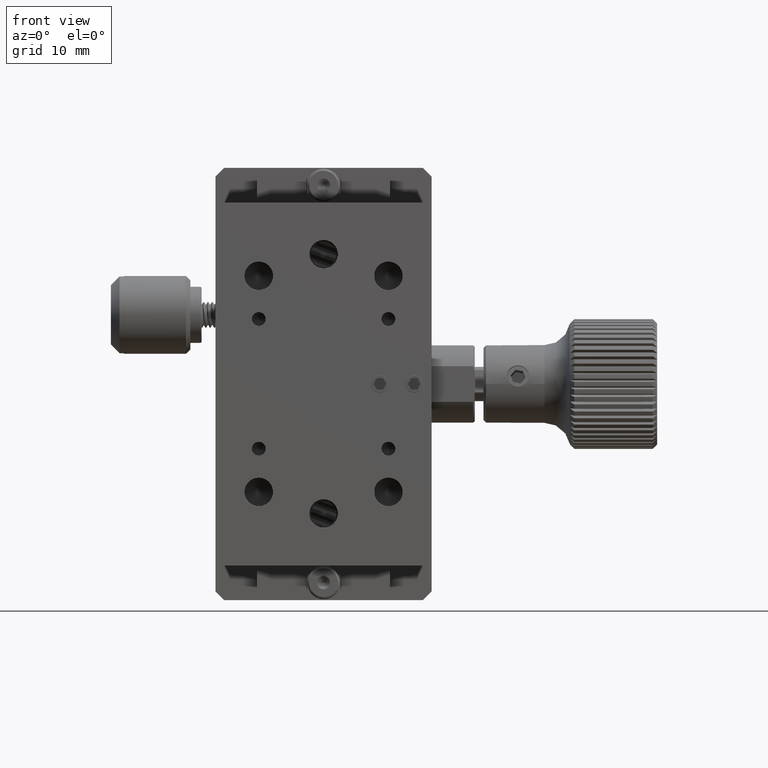
[diagram: clean part render]
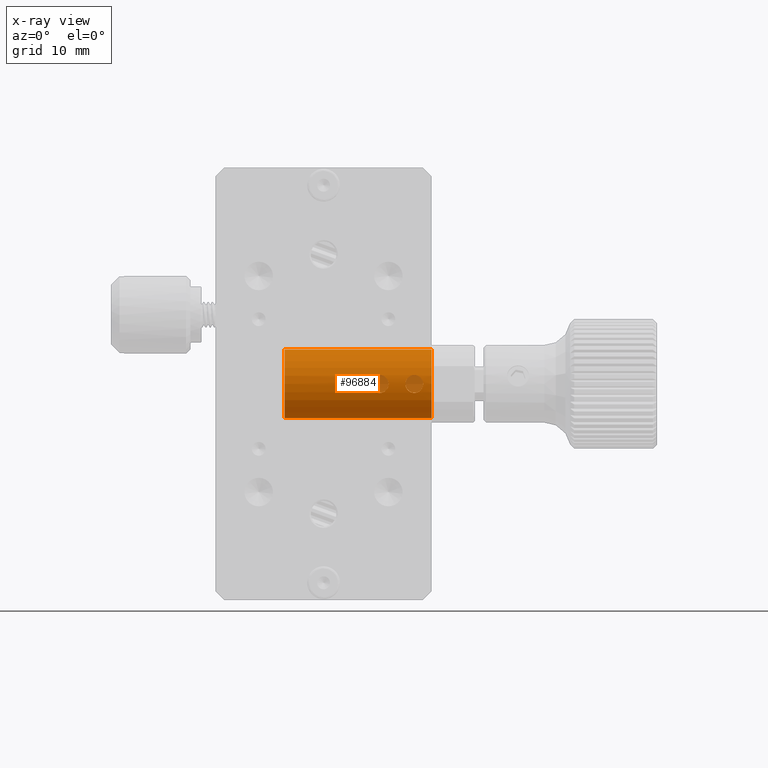
[diagram: x-ray — body ghosted, one internal face saturated and labeled with its STEP entity id]
A machine part, front view, then the same camera in x-ray: the body is ghosted and one INTERNAL B-rep face — a face not visible from any outside direction — is saturated and labeled: STEP entity #96884.
In plain terms, the highlighted cylindrical surface (bore or boss wall) has radius 4 mm, axis along (1, 0, 0).
Its self-contained STEP definition (entity closure, byte-faithful):
#703 = EDGE_CURVE ( 'NONE', #83281, #83281, #57222, .T. ) ;
#1824 = CARTESIAN_POINT ( 'NONE',  ( 9.474991375113672731, 3.899997789871961551, 24.78051272612443157 ) ) ;
#2908 = CARTESIAN_POINT ( 'NONE',  ( 6.230578982523748088, 4.026143432275793188, 25.64263679732385270 ) ) ;
#3536 = CARTESIAN_POINT ( 'NONE',  ( 7.394973579017529275, 3.931641068020847118, 24.12747412222269361 ) ) ;
#3604 = CIRCLE ( 'NONE', #35401, 3.999999999999998224 ) ;
#4142 = CARTESIAN_POINT ( 'NONE',  ( 7.017203248460226916, 4.001067654954175268, 23.74955515404783668 ) ) ;
#4969 = ORIENTED_EDGE ( 'NONE', *, *, #98412, .F. ) ;
#6320 = EDGE_CURVE ( 'NONE', #101837, #14027, #71834, .T. ) ;
#8556 = VERTEX_POINT ( 'NONE', #77623 ) ;
#8683 = CARTESIAN_POINT ( 'NONE',  ( 9.604978835707019158, 3.931633184260484803, 24.12733934432162641 ) ) ;
#11659 = CARTESIAN_POINT ( 'NONE',  ( 7.130828758554955904, 3.983525351014570504, 25.46338294064732111 ) ) ;
#12258 = CARTESIAN_POINT ( 'NONE',  ( 5.474991375113671843, 3.899997789871959331, 24.78051272612441380 ) ) ;
#13308 = CARTESIAN_POINT ( 'NONE',  ( 2.250000000000518252, 7.899999999999209876, 24.64461662145724929 ) ) ;
#14027 = VERTEX_POINT ( 'NONE', #98216 ) ;
#16998 = ORIENTED_EDGE ( 'NONE', *, *, #23537, .T. ) ;
#18231 = CARTESIAN_POINT ( 'NONE',  ( -4.499999999999484857, 7.899999999999208100, 24.64461662145724929 ) ) ;
#18642 = CARTESIAN_POINT ( 'NONE',  ( 11.49802649314374570, 3.907140291372251717, 24.91403021227419146 ) ) ;
#19279 = CARTESIAN_POINT ( 'NONE',  ( 9.681297778272911714, 3.948911959223532442, 25.27552665721466596 ) ) ;
#20995 = CARTESIAN_POINT ( 'NONE',  ( 6.635976539462563828, 4.033557836976465083, 23.61961662145725782 ) ) ;
#22820 = CARTESIAN_POINT ( 'NONE',  ( 7.395007212580094524, 3.931636397413091011, 25.16191987232966909 ) ) ;
#23270 = DIRECTION ( 'NONE',  ( -2.168404344971009854E-16, 1.000000000000000000, 0.000000000000000000 ) ) ;
#23537 = EDGE_CURVE ( 'NONE', #8556, #8556, #49046, .T. ) ;
#25226 = CARTESIAN_POINT ( 'NONE',  ( -2.249999999999482636, 9.099999999999214495, 28.46037342712502749 ) ) ;
#25532 = CARTESIAN_POINT ( 'NONE',  ( 11.39497357901752572, 3.931641068020847118, 24.12747412222271493 ) ) ;
#25723 = DIRECTION ( 'NONE',  ( -2.168404344971009854E-16, 1.000000000000000000, 0.000000000000000000 ) ) ;
#27701 = CARTESIAN_POINT ( 'NONE',  ( -4.499999999999485745, 11.89999999999920632, 24.64461662145724929 ) ) ;
#27978 = CARTESIAN_POINT ( 'NONE',  ( 9.605012454895756946, 3.931637851368814829, 25.16173306833543322 ) ) ;
#28586 = CARTESIAN_POINT ( 'NONE',  ( 10.63587666045961022, 4.033561008794149139, 25.66962858599352160 ) ) ;
#28645 = DIRECTION ( 'NONE',  ( -1.000000000000000000, -1.779203565104710486E-16, -0.000000000000000000 ) ) ;
#29220 = CARTESIAN_POINT ( 'NONE',  ( 9.869467726781211425, 3.983573781407828918, 25.46360981649005950 ) ) ;
#30316 = CARTESIAN_POINT ( 'NONE',  ( 5.869467726781217642, 3.983573781407828029, 25.46360981649004174 ) ) ;
#31538 = CARTESIAN_POINT ( 'NONE',  ( 5.605012454895757834, 3.931637851368812164, 25.16173306833543322 ) ) ;
#32754 = CARTESIAN_POINT ( 'NONE',  ( 6.364023460538483334, 4.033557836976467748, 23.61961662145726848 ) ) ;
#34053 = ORIENTED_EDGE ( 'NONE', *, *, #6320, .F. ) ;
#34241 = CARTESIAN_POINT ( 'NONE',  ( 11.13049163905886907, 3.983580544946795587, 23.82559091148111108 ) ) ;
#35155 = AXIS2_PLACEMENT_3D ( 'NONE', #51883, #117278, #51278 ) ;
#35401 = AXIS2_PLACEMENT_3D ( 'NONE', #13308, #51270, #52477 ) ;
#36888 = CYLINDRICAL_SURFACE ( 'NONE', #92668, 3.999999999999998224 ) ;
#39660 = CARTESIAN_POINT ( 'NONE',  ( 7.497514045140087013, 3.907265451331511485, 24.37372955753139436 ) ) ;
#40167 = EDGE_LOOP ( 'NONE', ( #16998 ) ) ;
#41484 = CARTESIAN_POINT ( 'NONE',  ( 6.500000000000524025, 4.033557836976465971, 23.61961662145726493 ) ) ;
#42091 = CARTESIAN_POINT ( 'NONE',  ( 5.501970367160882169, 3.907139440481881554, 24.37521818429007325 ) ) ;
#43438 = AXIS2_PLACEMENT_3D ( 'NONE', #112219, #73033, #25723 ) ;
#44633 = EDGE_CURVE ( 'NONE', #80268, #14027, #3604, .T. ) ;
#44801 = CARTESIAN_POINT ( 'NONE',  ( 11.01720324846022336, 4.001067654954174380, 23.74955515404784023 ) ) ;
#46847 = FACE_BOUND ( 'NONE', #69457, .T. ) ;
#49046 = CIRCLE ( 'NONE', #35155, 3.999999999999998224 ) ;
#49131 = CARTESIAN_POINT ( 'NONE',  ( 11.39500721258009541, 3.931636397413093231, 25.16191987232967264 ) ) ;
#49789 = LINE ( 'NONE', #88351, #114631 ) ;
#50095 = EDGE_LOOP ( 'NONE', ( #4969, #54866, #34053, #61337 ) ) ;
#50224 = CARTESIAN_POINT ( 'NONE',  ( 5.869130952612989560, 3.983518647596365536, 23.82588250088000947 ) ) ;
#50655 = DIRECTION ( 'NONE',  ( 1.000000000000000000, 1.779203565104710486E-16, 0.000000000000000000 ) ) ;
#50833 = CARTESIAN_POINT ( 'NONE',  ( 7.524991370178761407, 3.900002211391031093, 24.78065032296010983 ) ) ;
#51270 = DIRECTION ( 'NONE',  ( -1.000000000000000000, -1.779203565104710486E-16, -0.000000000000000000 ) ) ;
#51278 = DIRECTION ( 'NONE',  ( 0.000000000000000000, 1.000000000000000000, 0.000000000000000000 ) ) ;
#51883 = CARTESIAN_POINT ( 'NONE',  ( 12.50000000000051692, 7.899999999999211653, 24.64461662145724929 ) ) ;
#52477 = DIRECTION ( 'NONE',  ( -2.168404344971009854E-16, 1.000000000000000000, 0.000000000000000000 ) ) ;
#54866 = ORIENTED_EDGE ( 'NONE', *, *, #44633, .T. ) ;
#55363 = CIRCLE ( 'NONE', #43438, 3.999999999999998224 ) ;
#55989 = CARTESIAN_POINT ( 'NONE',  ( 9.869130952612991337, 3.983518647596365536, 23.82588250088000947 ) ) ;
#56187 = FACE_OUTER_BOUND ( 'NONE', #40167, .T. ) ;
#56602 = CARTESIAN_POINT ( 'NONE',  ( 9.982895195655071774, 4.001054480431608162, 23.74962685531257023 ) ) ;
#57222 = B_SPLINE_CURVE_WITH_KNOTS ( 'NONE', 3,
 ( #117448, #20995, #59566, #4142, #88184, #108094, #3536, #39660, #118049, #50833, #58962, #22820, #115613, #11659, #97545, #60168, #78848, #79466, #2908, #70750, #30316, #68918, #31538, #60785, #12258, #88800, #42091, #116210, #77640, #50224, #98146, #80067, #32754, #41484 ),
 .UNSPECIFIED., .T., .F.,
 ( 4, 2, 2, 2, 2, 2, 2, 2, 2, 2, 2, 2, 2, 2, 2, 2, 4 ),
 ( -0.001607921824408832870, -0.001205925343871053212, -0.0008039288633332737719, -0.0004019323827954943314, 6.409774228532602591E-08, 0.0004020605782800649834, 0.0008040570588178442071, 0.001206053539355623865, 0.001608050019893403522, 0.002010046500431183179, 0.002412042980968962837, 0.002814039461506742494, 0.003216035942044521284, 0.003618032422582300942, 0.004020028903120080599, 0.004422025383657860256, 0.004824021864195639914 ),
 .UNSPECIFIED. ) ;
#57243 = CARTESIAN_POINT ( 'NONE',  ( 10.50000000000052225, 4.033557836976465083, 23.61961662145726137 ) ) ;
#58962 = CARTESIAN_POINT ( 'NONE',  ( 7.498026493143745697, 3.907140291372251717, 24.91403021227418435 ) ) ;
#59566 = CARTESIAN_POINT ( 'NONE',  ( 6.769348164391649547, 4.026148858733974656, 23.64657564183894323 ) ) ;
#60168 = CARTESIAN_POINT ( 'NONE',  ( 6.770846711965502251, 4.026018306930352786, 25.64213762325833912 ) ) ;
#60785 = CARTESIAN_POINT ( 'NONE',  ( 5.502482912752042488, 3.907264624828135968, 24.91548889056557670 ) ) ;
#61337 = ORIENTED_EDGE ( 'NONE', *, *, #107114, .T. ) ;
#63106 = DIRECTION ( 'NONE',  ( 1.000000000000000000, 1.779203565104710486E-16, 0.000000000000000000 ) ) ;
#64103 = CARTESIAN_POINT ( 'NONE',  ( 10.76934816439164599, 4.026148858733973768, 23.64657564183894323 ) ) ;
#65957 = CARTESIAN_POINT ( 'NONE',  ( 9.681035954908857377, 3.948856806451238821, 24.01404607980776973 ) ) ;
#67919 = EDGE_LOOP ( 'NONE', ( #121184 ) ) ;
#68918 = CARTESIAN_POINT ( 'NONE',  ( 5.681297778272912602, 3.948911959223529777, 25.27552665721465530 ) ) ;
#69457 = EDGE_LOOP ( 'NONE', ( #107667 ) ) ;
#70750 = CARTESIAN_POINT ( 'NONE',  ( 5.982746260738559307, 4.001060598903559473, 25.53964764064850357 ) ) ;
#71834 = LINE ( 'NONE', #92334, #91712 ) ;
#71974 = FACE_BOUND ( 'NONE', #50095, .T. ) ;
#73033 = DIRECTION ( 'NONE',  ( 1.000000000000000000, 1.779203565104710486E-16, 0.000000000000000000 ) ) ;
#75902 = CARTESIAN_POINT ( 'NONE',  ( 9.502482912752041599, 3.907264624828137745, 24.91548889056558380 ) ) ;
#76100 = DIRECTION ( 'NONE',  ( -2.168404344971009854E-16, 1.000000000000000000, 0.000000000000000000 ) ) ;
#77623 = CARTESIAN_POINT ( 'NONE',  ( 12.50000000000051692, 11.89999999999920988, 24.64461662145724929 ) ) ;
#77640 = CARTESIAN_POINT ( 'NONE',  ( 5.681035954908858265, 3.948856806451238821, 24.01404607980774841 ) ) ;
#78848 = CARTESIAN_POINT ( 'NONE',  ( 6.635876660459606668, 4.033561008794149139, 25.66962858599351449 ) ) ;
#79466 = CARTESIAN_POINT ( 'NONE',  ( 6.363942887957811045, 4.033554663053308786, 25.66960464897882943 ) ) ;
#80067 = CARTESIAN_POINT ( 'NONE',  ( 6.229081674936807644, 4.026012967917862007, 23.64711608445210445 ) ) ;
#80268 = VERTEX_POINT ( 'NONE', #100842 ) ;
#81026 = VERTEX_POINT ( 'NONE', #25226 ) ;
#83254 = CARTESIAN_POINT ( 'NONE',  ( -2.249999999999482636, 9.099999999999212719, 20.82885981578946755 ) ) ;
#83281 = VERTEX_POINT ( 'NONE', #121269 ) ;
#84203 = DIRECTION ( 'NONE',  ( 1.000000000000000000, 1.779203565104710486E-16, 0.000000000000000000 ) ) ;
#84618 = CARTESIAN_POINT ( 'NONE',  ( 9.982746260738558419, 4.001060598903560361, 25.53964764064850357 ) ) ;
#85453 = FACE_BOUND ( 'NONE', #67919, .T. ) ;
#86473 = CARTESIAN_POINT ( 'NONE',  ( 9.501970367160879505, 3.907139440481881554, 24.37521818429008391 ) ) ;
#86901 = CIRCLE ( 'NONE', #120753, 3.999999999999998224 ) ;
#87097 = CARTESIAN_POINT ( 'NONE',  ( 11.01705388421958176, 4.001061562932473947, 25.53963694034979071 ) ) ;
#88184 = CARTESIAN_POINT ( 'NONE',  ( 7.130491639058873510, 3.983580544946795587, 23.82559091148110397 ) ) ;
#88351 = CARTESIAN_POINT ( 'NONE',  ( -4.499999999999484857, 9.099999999999216271, 28.46037342712502749 ) ) ;
#88800 = CARTESIAN_POINT ( 'NONE',  ( 5.475008629014141093, 3.900002211183944745, 24.50859044103744466 ) ) ;
#88864 = EDGE_CURVE ( 'NONE', #90623, #90623, #106952, .T. ) ;
#90623 = VERTEX_POINT ( 'NONE', #111155 ) ;
#91080 = CARTESIAN_POINT ( 'NONE',  ( -2.249999999999482636, 7.899999999999208100, 24.64461662145724929 ) ) ;
#91712 = VECTOR ( 'NONE', #63106, 1000.000000000000000 ) ;
#92334 = CARTESIAN_POINT ( 'NONE',  ( -4.499999999999484857, 9.099999999999210942, 20.82885981578946755 ) ) ;
#92668 = AXIS2_PLACEMENT_3D ( 'NONE', #18231, #84203, #76100 ) ;
#94577 = CARTESIAN_POINT ( 'NONE',  ( 10.23057898252374898, 4.026143432275796741, 25.64263679732385270 ) ) ;
#94928 = VERTEX_POINT ( 'NONE', #27701 ) ;
#95210 = CARTESIAN_POINT ( 'NONE',  ( 11.13082875855495679, 3.983525351014573168, 25.46338294064733176 ) ) ;
#95821 = CARTESIAN_POINT ( 'NONE',  ( 10.36402346053848511, 4.033557836976465971, 23.61961662145726848 ) ) ;
#96884 = ADVANCED_FACE ( 'NONE', ( #85453, #56187, #71974, #104121, #46847 ), #36888, .F. ) ;
#97545 = CARTESIAN_POINT ( 'NONE',  ( 7.017053884219579096, 4.001061562932473059, 25.53963694034979071 ) ) ;
#98146 = CARTESIAN_POINT ( 'NONE',  ( 5.982895195655072662, 4.001054480431608162, 23.74962685531256312 ) ) ;
#98216 = CARTESIAN_POINT ( 'NONE',  ( 2.250000000000518252, 9.099999999999214495, 20.82885981578946755 ) ) ;
#98412 = EDGE_CURVE ( 'NONE', #80268, #81026, #49789, .T. ) ;
#98758 = ORIENTED_EDGE ( 'NONE', *, *, #117817, .F. ) ;
#100842 = CARTESIAN_POINT ( 'NONE',  ( 2.250000000000518252, 9.099999999999216271, 28.46037342712502749 ) ) ;
#101468 = CARTESIAN_POINT ( 'NONE',  ( 11.49751404514008613, 3.907265451331510597, 24.37372955753140147 ) ) ;
#101837 = VERTEX_POINT ( 'NONE', #83254 ) ;
#102072 = CARTESIAN_POINT ( 'NONE',  ( 11.52500862569520201, 3.899997789664953807, 24.50871300069625391 ) ) ;
#103916 = CARTESIAN_POINT ( 'NONE',  ( 11.52499137017876230, 3.900002211391031537, 24.78065032296010983 ) ) ;
#104121 = FACE_OUTER_BOUND ( 'NONE', #113372, .T. ) ;
#104539 = CARTESIAN_POINT ( 'NONE',  ( 10.22908167493680764, 4.026012967917861118, 23.64711608445211155 ) ) ;
#105783 = CARTESIAN_POINT ( 'NONE',  ( 10.77084671196550225, 4.026018306930356339, 25.64213762325834267 ) ) ;
#106382 = CARTESIAN_POINT ( 'NONE',  ( 10.36394288795781193, 4.033554663053309675, 25.66960464897883298 ) ) ;
#106952 = B_SPLINE_CURVE_WITH_KNOTS ( 'NONE', 3,
 ( #119544, #111426, #64103, #44801, #34241, #110817, #25532, #101468, #102072, #103916, #18642, #49131, #113269, #95210, #87097, #105783, #28586, #106382, #94577, #84618, #29220, #19279, #27978, #75902, #1824, #123232, #86473, #8683, #65957, #55989, #56602, #104539, #95821, #57243 ),
 .UNSPECIFIED., .T., .F.,
 ( 4, 2, 2, 2, 2, 2, 2, 2, 2, 2, 2, 2, 2, 2, 2, 2, 4 ),
 ( -0.001607921824408827232, -0.001205925343871047575, -0.0008039288633332679172, -0.0004019323827954882598, 6.409774229139755808E-08, 0.0004020605782800710550, 0.0008040570588178507123, 0.001206053539355630370, 0.001608050019893410027, 0.002010046500431189685, 0.002412042980968969342, 0.002814039461506748999, 0.003216035942044528657, 0.003618032422582308314, 0.004020028903120087538, 0.004422025383657867195, 0.004824021864195646853 ),
 .UNSPECIFIED. ) ;
#107114 = EDGE_CURVE ( 'NONE', #101837, #81026, #86901, .T. ) ;
#107667 = ORIENTED_EDGE ( 'NONE', *, *, #703, .T. ) ;
#108094 = CARTESIAN_POINT ( 'NONE',  ( 7.318680423187075235, 3.948916695853432302, 24.01367669942385419 ) ) ;
#110817 = CARTESIAN_POINT ( 'NONE',  ( 11.31868042318707168, 3.948916695853433190, 24.01367669942386129 ) ) ;
#111155 = CARTESIAN_POINT ( 'NONE',  ( 11.52500000000051728, 3.899999999999212097, 24.64461662145770049 ) ) ;
#111426 = CARTESIAN_POINT ( 'NONE',  ( 10.63597653946255761, 4.033557836976464195, 23.61961662145725427 ) ) ;
#112219 = CARTESIAN_POINT ( 'NONE',  ( -4.499999999999484857, 7.899999999999208100, 24.64461662145724929 ) ) ;
#113269 = CARTESIAN_POINT ( 'NONE',  ( 11.31894191929895577, 3.948861604459994901, 25.27521739918846322 ) ) ;
#113372 = EDGE_LOOP ( 'NONE', ( #98758 ) ) ;
#114631 = VECTOR ( 'NONE', #28645, 1000.000000000000000 ) ;
#115613 = CARTESIAN_POINT ( 'NONE',  ( 7.318941919298956655, 3.948861604459992236, 25.27521739918845256 ) ) ;
#116210 = CARTESIAN_POINT ( 'NONE',  ( 5.604978835707025375, 3.931633184260484803, 24.12733934432161931 ) ) ;
#117278 = DIRECTION ( 'NONE',  ( 1.000000000000000000, 1.779203565104710486E-16, 0.000000000000000000 ) ) ;
#117448 = CARTESIAN_POINT ( 'NONE',  ( 6.500000000000524025, 4.033557836976465971, 23.61961662145726493 ) ) ;
#117817 = EDGE_CURVE ( 'NONE', #94928, #94928, #55363, .T. ) ;
#118049 = CARTESIAN_POINT ( 'NONE',  ( 7.525008625695197573, 3.899997789664954251, 24.50871300069625036 ) ) ;
#119544 = CARTESIAN_POINT ( 'NONE',  ( 10.50000000000052225, 4.033557836976465083, 23.61961662145726137 ) ) ;
#120753 = AXIS2_PLACEMENT_3D ( 'NONE', #91080, #50655, #23270 ) ;
#121184 = ORIENTED_EDGE ( 'NONE', *, *, #88864, .T. ) ;
#121269 = CARTESIAN_POINT ( 'NONE',  ( 7.525000000000518163, 3.899999999999211209, 24.64461662145770049 ) ) ;
#123232 = CARTESIAN_POINT ( 'NONE',  ( 9.475008629014139316, 3.900002211183946965, 24.50859044103746243 ) ) ;